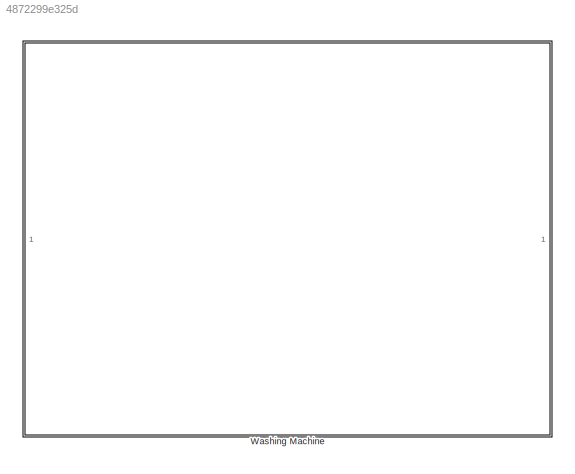
MODEL slx_4872299e325d
KIND model
CONFIG AbsTol = auto
CONFIG EnableMultiTasking = off
CONFIG FixedStep = auto
CONFIG MaxStep = auto
CONFIG MinStep = auto
CONFIG RelTol = 1e-3
CONFIG SampleTimeConstraint = Unconstrained
CONFIG SolverName = VariableStepAuto
CONFIG StartTime = 0.0
CONFIG StopTime = 10.0
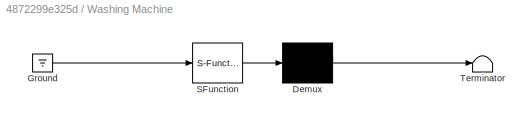
BLOCK [SubSystem] Washing Machine
  ErrorFcn = Stateflow.Translate.translate
  PermitHierarchicalResolution = ExplicitOnly
  SFBlockType = Chart
  TreatAsAtomicUnit = on
BLOCK [Demux] Washing Machine/ Demux 
  Outputs = 1
BLOCK [Ground] Washing Machine/ Ground 
BLOCK [S-Function] Washing Machine/ SFunction 
  EnableBusSupport = off
  FunctionName = sf_sfun
  PortCounts = [1 1]
  SFcnIsStateOwnerBlock = off
  SFunctionDeploymentMode = off
  Tag = Stateflow S-Function 3
BLOCK [Terminator] Washing Machine/ Terminator 
CHART Washing Machine states=8 transitions=7
  STATE_LABEL 'Washing'
  STATE_LABEL 'StopFilling\nSpinSpeed=20;\n'
  STATE_LABEL 'Init \nWaterLevel=WaterLevel+1;\nTemperatureLevel=TemperatureLevel+10;\n'
  STATE_LABEL 'Spin\nSpinSpeed==0;\n'
  STATE_LABEL 'Faulty \nMachineStatus==3;\n'
  STATE_LABEL '[WaterLevel==10]'
  STATE_LABEL '[after(5, sec)]'
  STATE_LABEL '[after(20,sec)]'
  STATE_LABEL '[after (160,sec) &&TemperatureLevel<90]'
  STATE_LABEL 'StopFilling\nSpinSpeed=20;\n'
  STATE_LABEL 'Init \nWaterLevel=WaterLevel+1;\nTemperatureLevel=TemperatureLevel+10;\n'
  STATE_LABEL 'Spin\nSpinSpeed==0;\n'
  STATE_LABEL 'Faulty \nMachineStatus==3;\n'
  STATE_LABEL 'IDLE\ndu:\nFillWater==0;\nActivatePump=0;\nHeatWater=0;\nRotatingSpeed=0;\nMachineStatus=0;'
  STATE_LABEL 'Rinse\n'
  STATE_LABEL 'InitR\n\nWaterLevel=WaterLevel-0.9;\n'
  STATE_LABEL '[SpinSpeed==0;]'
  STATE_LABEL 'InitR\n\nWaterLevel=WaterLevel-0.9;\n'
CHART  states=0 transitions=0
